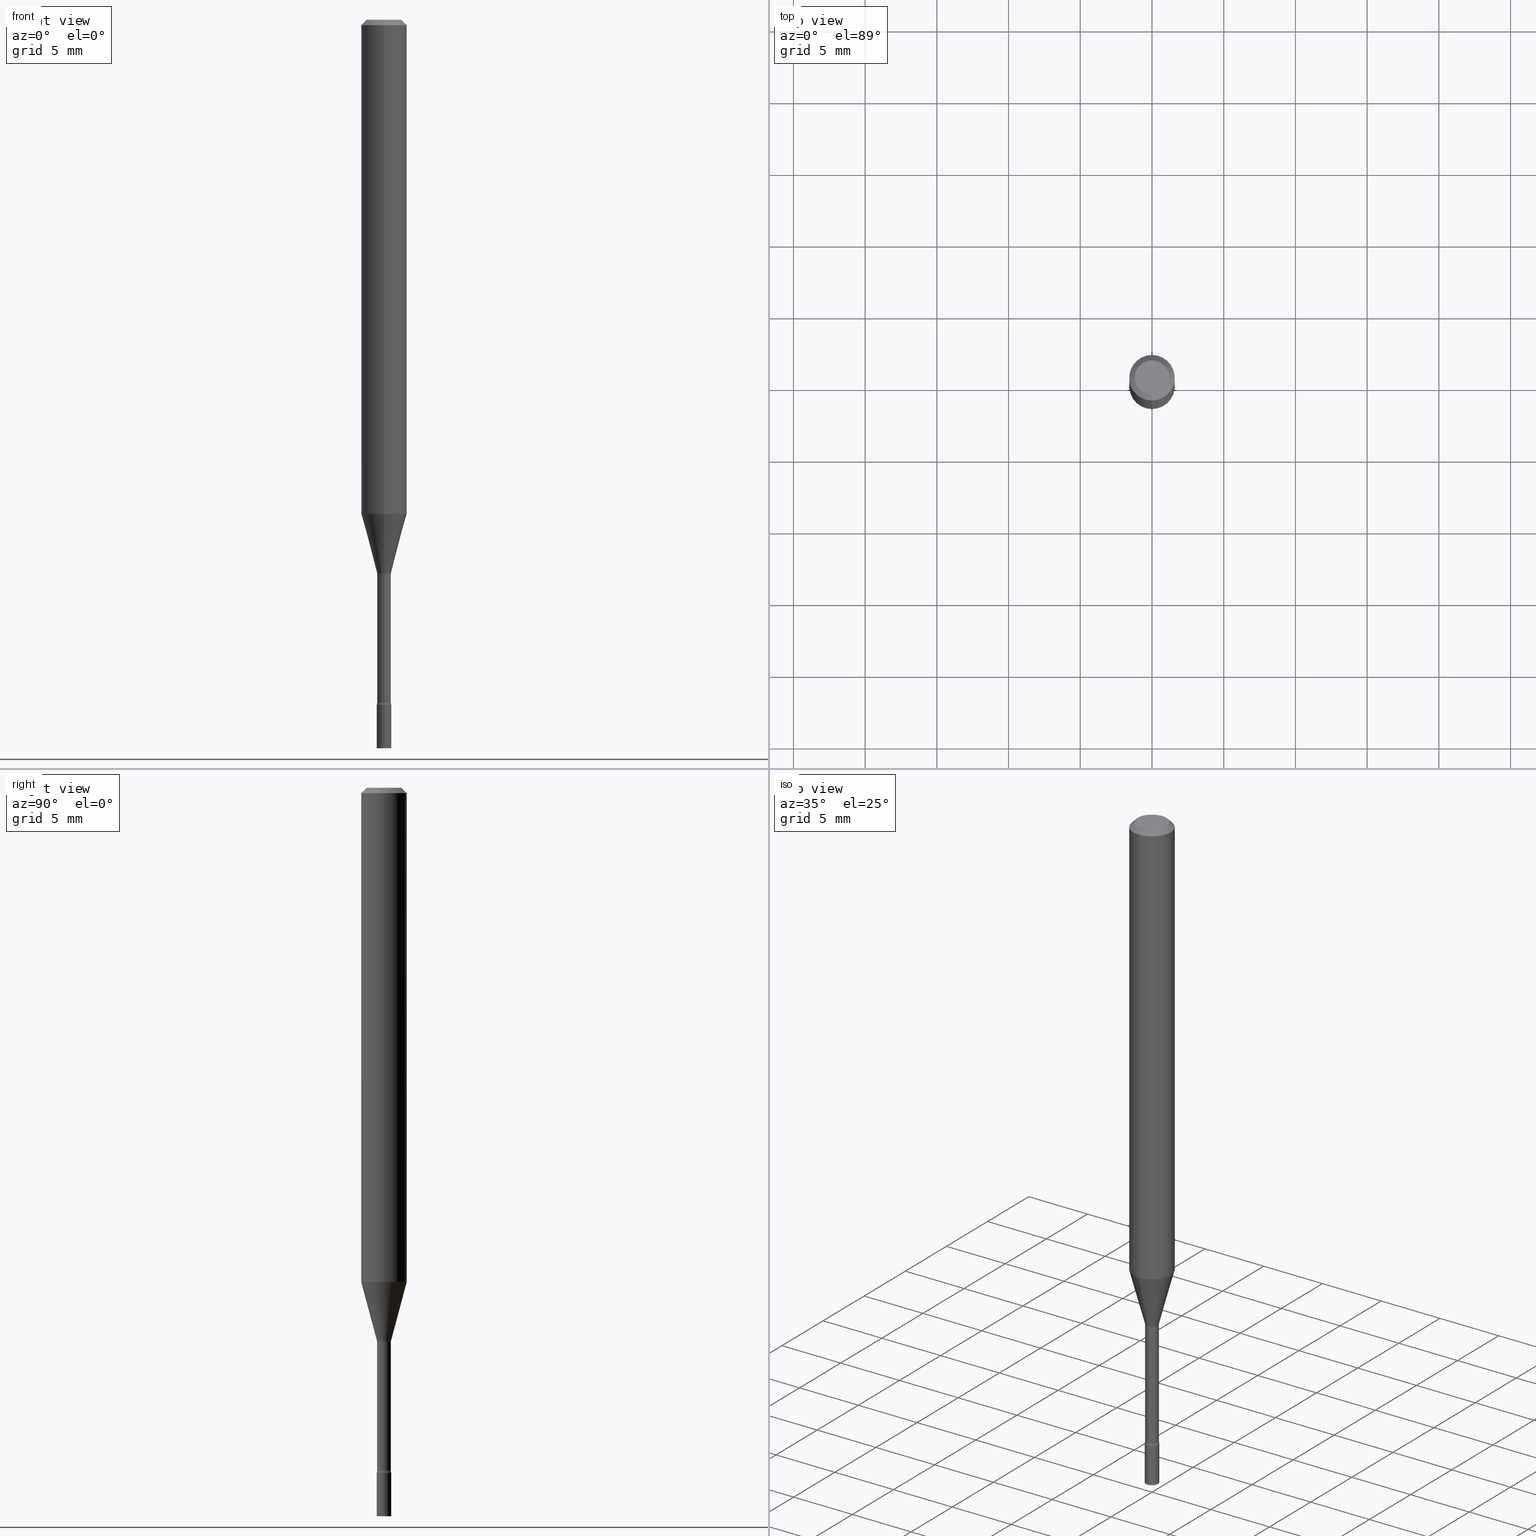
[diagram: canonical four-view strip — front | top / right | iso, engineering-drawing reading convention]
A machine part, canonical four-view strip (front | top / right | iso — engineering-drawing reading convention). The complete STEP part file that produces these views, byte-faithful:
ISO-10303-21;
HEADER;
FILE_DESCRIPTION (( 'STEP AP203' ),
    '1' );
FILE_NAME ('09366.STEP',
    '2024-03-08T23:23:35',
    ( '' ),
    ( '' ),
    'SwSTEP 2.0',
    'SolidWorks 2023',
    '' );
FILE_SCHEMA (( 'CONFIG_CONTROL_DESIGN' ));
ENDSEC;

DATA;
#1 = EDGE_CURVE ( 'NONE', #261, #129, #315, .T. ) ;
#2 = CIRCLE ( 'NONE', #517, 0.06250000000000000000 ) ;
#3 = CIRCLE ( 'NONE', #325, 0.01880000000000012564 ) ;
#4 = FACE_OUTER_BOUND ( 'NONE', #305, .T. ) ;
#5 = ORIENTED_EDGE ( 'NONE', *, *, #356, .F. ) ;
#6 = CYLINDRICAL_SURFACE ( 'NONE', #468, 0.01880000000000006319 ) ;
#7 = EDGE_CURVE ( 'NONE', #196, #336, #495, .T. ) ;
#8 = ORIENTED_EDGE ( 'NONE', *, *, #135, .F. ) ;
#9 = DIRECTION ( 'NONE',  ( -2.445505106030929007E-29, 3.491429355397911828E-15, 1.000000000000000000 ) ) ;
#10 = FACE_OUTER_BOUND ( 'NONE', #498, .T. ) ;
#11 = ORIENTED_EDGE ( 'NONE', *, *, #288, .T. ) ;
#12 = COORDINATED_UNIVERSAL_TIME_OFFSET ( 5, 0, .BEHIND. ) ;
#13 = AXIS2_PLACEMENT_3D ( 'NONE', #442, #480, #448 ) ;
#14 = LINE ( 'NONE', #163, #90 ) ;
#15 = DIRECTION ( 'NONE',  ( -6.982962677686262766E-15, -1.000000000000000000, 0.000000000000000000 ) ) ;
#16 = DATE_AND_TIME ( #84, #103 ) ;
#17 = DIRECTION ( 'NONE',  ( -6.982962677686271444E-15, -1.000000000000000000, 0.000000000000000000 ) ) ;
#18 = EDGE_CURVE ( 'NONE', #336, #132, #486, .T. ) ;
#19 = DIRECTION ( 'NONE',  ( -6.982962677686265922E-15, -1.000000000000000000, 0.000000000000000000 ) ) ;
#20 = PERSON_AND_ORGANIZATION ( #47, #381 ) ;
#21 = CC_DESIGN_SECURITY_CLASSIFICATION ( #170, ( #39 ) ) ;
#22 = DIRECTION ( 'NONE',  ( -2.445468806185136597E-29, 3.491481338843145583E-15, 1.000000000000000000 ) ) ;
#23 = VECTOR ( 'NONE', #168, 39.37007874015748143 ) ;
#24 = VECTOR ( 'NONE', #107, 39.37007874015748143 ) ;
#25 = ORIENTED_EDGE ( 'NONE', *, *, #276, .F. ) ;
#26 = DIRECTION ( 'NONE',  ( -2.445505106030929007E-29, 3.491429355397911828E-15, 1.000000000000000000 ) ) ;
#27 = ORIENTED_EDGE ( 'NONE', *, *, #321, .T. ) ;
#28 = CARTESIAN_POINT ( 'NONE',  ( 4.597549599338146578E-29, -6.563887188148074048E-15, -1.879999999999999893 ) ) ;
#29 = EDGE_LOOP ( 'NONE', ( #118, #416, #331, #8 ) ) ;
#30 = DIRECTION ( 'NONE',  ( -6.982962677686265922E-15, -1.000000000000000000, 3.491429355397911828E-15 ) ) ;
#31 = AXIS2_PLACEMENT_3D ( 'NONE', #360, #450, #46 ) ;
#32 = CARTESIAN_POINT ( 'NONE',  ( 1.372137078140354813E-16, 0.01931111260565867432, -1.518092501787273063 ) ) ;
#33 = ORIENTED_EDGE ( 'NONE', *, *, #98, .F. ) ;
#34 = CARTESIAN_POINT ( 'NONE',  ( 0.000000000000000000, 0.000000000000000000, 0.000000000000000000 ) ) ;
#35 = AXIS2_PLACEMENT_3D ( 'NONE', #365, #520, #306 ) ;
#36 = CIRCLE ( 'NONE', #120, 0.01880000000000000074 ) ;
#37 = EDGE_CURVE ( 'NONE', #178, #371, #188, .T. ) ;
#38 = EDGE_LOOP ( 'NONE', ( #100, #218, #443, #109 ) ) ;
#39 = PRODUCT_DEFINITION_FORMATION_WITH_SPECIFIED_SOURCE ( 'ANY', '', #318, .NOT_KNOWN. ) ;
#40 = AXIS2_PLACEMENT_3D ( 'NONE', #42, #91, #487 ) ;
#41 = AXIS2_PLACEMENT_3D ( 'NONE', #222, #389, #30 ) ;
#42 = CARTESIAN_POINT ( 'NONE',  ( 4.597481355628056331E-29, -6.563984917025112954E-15, -1.879999999999999893 ) ) ;
#43 = DIRECTION ( 'NONE',  ( 1.000000000000000000, -6.982962677686284065E-15, 0.000000000000000000 ) ) ;
#44 = CARTESIAN_POINT ( 'NONE',  ( 1.396592535537742485E-16, 0.01999999999999301642, -2.000000000000000000 ) ) ;
#45 = EDGE_LOOP ( 'NONE', ( #227, #505, #101, #297 ) ) ;
#46 = DIRECTION ( 'NONE',  ( -6.982962677686265922E-15, -1.000000000000000000, 3.491429355397911828E-15 ) ) ;
#47 = PERSON ( 'UNSPECIFIED', 'UNSPECIFIED', 'UNSPECIFIED', ('UNSPECIFIED'), ('UNSPECIFIED'), ('UNSPECIFIED') ) ;
#48 = VERTEX_POINT ( 'NONE', #102 ) ;
#49 = AXIS2_PLACEMENT_3D ( 'NONE', #481, #324, #239 ) ;
#50 = FACE_OUTER_BOUND ( 'NONE', #391, .T. ) ;
#51 = APPROVAL_ROLE ( '' ) ;
#52 = CC_DESIGN_PERSON_AND_ORGANIZATION_ASSIGNMENT ( #112, #275, ( #88 ) ) ;
#53 = DIRECTION ( 'NONE',  ( -6.982962677686266711E-15, -1.000000000000000000, 3.491429355397911828E-15 ) ) ;
#54 = FACE_OUTER_BOUND ( 'NONE', #453, .T. ) ;
#55 = ORIENTED_EDGE ( 'NONE', *, *, #518, .F. ) ;
#56 = PERSON_AND_ORGANIZATION ( #47, #381 ) ;
#57 = DIRECTION ( 'NONE',  ( -2.445468806185136597E-29, 3.491481338843145583E-15, 1.000000000000000000 ) ) ;
#58 = VERTEX_POINT ( 'NONE', #461 ) ;
#59 = LOCAL_TIME ( 18, 23, 35.00000000000000000, #249 ) ;
#60 = CARTESIAN_POINT ( 'NONE',  ( 0.000000000000000000, 0.000000000000000000, 0.000000000000000000 ) ) ;
#61 = CIRCLE ( 'NONE', #400, 0.02000000000000000042 ) ;
#62 = EDGE_CURVE ( 'NONE', #132, #336, #36, .T. ) ;
#63 = VERTEX_POINT ( 'NONE', #95 ) ;
#64 = EDGE_LOOP ( 'NONE', ( #500, #420, #217, #301 ) ) ;
#65 = FACE_OUTER_BOUND ( 'NONE', #177, .T. ) ;
#66 = ORIENTED_EDGE ( 'NONE', *, *, #202, .F. ) ;
#67 = CARTESIAN_POINT ( 'NONE',  ( 4.890937612370273194E-29, -6.982962677686291165E-15, -2.000000000000000000 ) ) ;
#68 = CIRCLE ( 'NONE', #285, 0.04749999999999999362 ) ;
#69 = VERTEX_POINT ( 'NONE', #157 ) ;
#70 = EDGE_LOOP ( 'NONE', ( #220, #308, #33, #424 ) ) ;
#71 = EDGE_CURVE ( 'NONE', #261, #132, #405, .T. ) ;
#72 = CALENDAR_DATE ( 2024, 8, 3 ) ;
#73 = MECHANICAL_CONTEXT ( 'NONE', #80, 'mechanical' ) ;
#74 = CONICAL_SURFACE ( 'NONE', #349, 0.01931111260566397564, 0.2617993877991498519 ) ;
#75 = AXIS2_PLACEMENT_3D ( 'NONE', #82, #361, #282 ) ;
#76 = APPROVAL_ROLE ( '' ) ;
#77 = LINE ( 'NONE', #289, #162 ) ;
#78 = AXIS2_PLACEMENT_3D ( 'NONE', #180, #94, #508 ) ;
#79 = CIRCLE ( 'NONE', #128, 0.02000000000000000042 ) ;
#80 = APPLICATION_CONTEXT ( 'configuration controlled 3d designs of mechanical parts and assemblies' ) ;
#81 = DIRECTION ( 'NONE',  ( -2.445505106030929007E-29, 3.491429355397911828E-15, 1.000000000000000000 ) ) ;
#82 = CARTESIAN_POINT ( 'NONE',  ( 3.318328816500207718E-29, -4.737553240931613222E-15, -1.356909379709240193 ) ) ;
#83 = DIRECTION ( 'NONE',  ( -6.982962677686265922E-15, -1.000000000000000000, 3.491429355397911828E-15 ) ) ;
#84 = CALENDAR_DATE ( 2024, 8, 3 ) ;
#85 = CARTESIAN_POINT ( 'NONE',  ( 7.071515528401265634E-46, -1.009594984779397926E-31, -2.891638014151760523E-17 ) ) ;
#86 = CYLINDRICAL_SURFACE ( 'NONE', #393, 0.06250000000000000000 ) ;
#87 = AXIS2_PLACEMENT_3D ( 'NONE', #67, #141, #43 ) ;
#88 = PRODUCT_DEFINITION ( 'UNKNOWN', '', #39, #482 ) ;
#89 = VERTEX_POINT ( 'NONE', #441 ) ;
#90 = VECTOR ( 'NONE', #150, 39.37007874015748143 ) ;
#91 = DIRECTION ( 'NONE',  ( -2.438088387897960049E-29, 3.491481338843145188E-15, 1.000000000000000000 ) ) ;
#92 = DIRECTION ( 'NONE',  ( -2.445505106030929007E-29, 3.491429355397911828E-15, 1.000000000000000000 ) ) ;
#93 = ORIENTED_EDGE ( 'NONE', *, *, #343, .F. ) ;
#94 = DIRECTION ( 'NONE',  ( -2.445505106030929007E-29, 3.491429355397911828E-15, 1.000000000000000000 ) ) ;
#95 = CARTESIAN_POINT ( 'NONE',  ( -1.396592535536790429E-16, -0.02000000000000652298, -1.879999999999999893 ) ) ;
#96 = ORIENTED_EDGE ( 'NONE', *, *, #71, .T. ) ;
#97 = PERSON_AND_ORGANIZATION ( #47, #381 ) ;
#98 = EDGE_CURVE ( 'NONE', #58, #385, #173, .T. ) ;
#99 = DIRECTION ( 'NONE',  ( 6.982962677686265922E-15, 1.000000000000000000, -3.491429355397911828E-15 ) ) ;
#100 = ORIENTED_EDGE ( 'NONE', *, *, #274, .F. ) ;
#101 = ORIENTED_EDGE ( 'NONE', *, *, #280, .T. ) ;
#102 = CARTESIAN_POINT ( 'NONE',  ( -4.364351673553912750E-16, -0.06250000000000005551, -0.01499999999999981209 ) ) ;
#103 = LOCAL_TIME ( 18, 23, 35.00000000000000000, #12 ) ;
#104 = DIRECTION ( 'NONE',  ( -6.982962677686265922E-15, -1.000000000000000000, 0.000000000000000000 ) ) ;
#105 = EDGE_LOOP ( 'NONE', ( #430, #255, #510, #367 ) ) ;
#106 = LINE ( 'NONE', #466, #24 ) ;
#107 = DIRECTION ( 'NONE',  ( -4.851104656540964275E-15, -0.7071067811865500152, -0.7071067811865450192 ) ) ;
#108 = CC_DESIGN_DATE_AND_TIME_ASSIGNMENT ( #164, #161, ( #88 ) ) ;
#109 = ORIENTED_EDGE ( 'NONE', *, *, #398, .F. ) ;
#110 = AXIS2_PLACEMENT_3D ( 'NONE', #44, #116, #459 ) ;
#111 = CIRCLE ( 'NONE', #194, 0.06250000000000000000 ) ;
#112 = PERSON_AND_ORGANIZATION ( #47, #381 ) ;
#113 = EDGE_CURVE ( 'NONE', #129, #58, #290, .T. ) ;
#114 = PERSON_AND_ORGANIZATION ( #47, #381 ) ;
#115 = EDGE_CURVE ( 'NONE', #223, #171, #68, .T. ) ;
#116 = DIRECTION ( 'NONE',  ( 2.438088387897960049E-29, -3.491481338843145188E-15, -1.000000000000000000 ) ) ;
#117 = CARTESIAN_POINT ( 'NONE',  ( 1.396592535537712903E-16, 0.01999999999999343622, -1.879999999999999893 ) ) ;
#118 = ORIENTED_EDGE ( 'NONE', *, *, #321, .F. ) ;
#119 = DATE_AND_TIME ( #272, #307 ) ;
#120 = AXIS2_PLACEMENT_3D ( 'NONE', #348, #92, #19 ) ;
#121 = DIRECTION ( 'NONE',  ( -6.982962677686265133E-15, -1.000000000000000000, 3.491429355397911828E-15 ) ) ;
#122 = APPROVAL_STATUS ( 'not_yet_approved' ) ;
#123 = DIRECTION ( 'NONE',  ( -2.445505106030928727E-29, 3.491429355397911828E-15, 1.000000000000000000 ) ) ;
#124 = EDGE_CURVE ( 'NONE', #63, #69, #61, .T. ) ;
#125 = ADVANCED_BREP_SHAPE_REPRESENTATION ( '09366', ( #240, #245, #238 ), #269 ) ;
#126 = DIRECTION ( 'NONE',  ( -6.982962677686265922E-15, -1.000000000000000000, 0.000000000000000000 ) ) ;
#127 = PLANE ( 'NONE',  #110 ) ;
#128 = AXIS2_PLACEMENT_3D ( 'NONE', #422, #22, #181 ) ;
#129 = VERTEX_POINT ( 'NONE', #159 ) ;
#130 = AXIS2_PLACEMENT_3D ( 'NONE', #502, #298, #314 ) ;
#131 = DIRECTION ( 'NONE',  ( 1.000000000000000000, -7.105427357601001070E-15, 4.926314871928484393E-29 ) ) ;
#132 = VERTEX_POINT ( 'NONE', #452 ) ;
#133 = ORIENTED_EDGE ( 'NONE', *, *, #37, .T. ) ;
#134 = DIRECTION ( 'NONE',  ( -6.982962677686265922E-15, -1.000000000000000000, 4.370956789862821150E-15 ) ) ;
#135 = EDGE_CURVE ( 'NONE', #223, #156, #211, .T. ) ;
#136 = DIRECTION ( 'NONE',  ( 2.445505106030929007E-29, -3.491429355397911828E-15, -1.000000000000000000 ) ) ;
#137 = ORIENTED_EDGE ( 'NONE', *, *, #225, .F. ) ;
#138 = CONICAL_SURFACE ( 'NONE', #390, 0.06250000000000000000, 0.7853981633974483900 ) ;
#139 = DIRECTION ( 'NONE',  ( -2.445468806185136597E-29, 3.491481338843145583E-15, 1.000000000000000000 ) ) ;
#140 = AXIS2_PLACEMENT_3D ( 'NONE', #372, #437, #126 ) ;
#141 = DIRECTION ( 'NONE',  ( -2.445468806185136597E-29, 3.491481338843145583E-15, 1.000000000000000000 ) ) ;
#142 = APPROVAL ( #233, 'UNSPECIFIED' ) ;
#143 = EDGE_LOOP ( 'NONE', ( #264, #504, #219, #345 ) ) ;
#144 = APPROVAL_DATE_TIME ( #119, #142 ) ;
#145 = AXIS2_PLACEMENT_3D ( 'NONE', #28, #339, #104 ) ;
#146 = ADVANCED_FACE ( 'NONE', ( #506 ), #262, .T. ) ;
#147 = CYLINDRICAL_SURFACE ( 'NONE', #283, 0.06250000000000000000 ) ;
#148 = TOROIDAL_SURFACE ( 'NONE', #35, 0.03380000000000004529, 0.01499999999999992138 ) ;
#149 = CIRCLE ( 'NONE', #279, 0.01880000000000012564 ) ;
#150 = DIRECTION ( 'NONE',  ( -2.445505106030928727E-29, 3.491429355397911828E-15, 1.000000000000000000 ) ) ;
#151 = ADVANCED_FACE ( 'NONE', ( #54 ), #251, .T. ) ;
#152 = CARTESIAN_POINT ( 'NONE',  ( -0.02000000000000000042, -6.631365250203681896E-15, -2.000000000000000000 ) ) ;
#153 = APPLICATION_CONTEXT ( 'configuration controlled 3d designs of mechanical parts and assemblies' ) ;
#154 = CARTESIAN_POINT ( 'NONE',  ( 4.597549599338146578E-29, -6.563887188148074048E-15, -1.879999999999999893 ) ) ;
#155 = DIRECTION ( 'NONE',  ( 0.000000000000000000, 0.000000000000000000, 1.000000000000000000 ) ) ;
#156 = VERTEX_POINT ( 'NONE', #284 ) ;
#157 = CARTESIAN_POINT ( 'NONE',  ( 1.421085471520656955E-16, 0.01999999999999339112, -1.879999999999999893 ) ) ;
#158 = FACE_OUTER_BOUND ( 'NONE', #105, .T. ) ;
#159 = CARTESIAN_POINT ( 'NONE',  ( -1.348487785899111910E-16, -0.01931111260566927695, -1.518092501787273063 ) ) ;
#160 = ORIENTED_EDGE ( 'NONE', *, *, #115, .F. ) ;
#161 = DATE_TIME_ROLE ( 'creation_date' ) ;
#162 = VECTOR ( 'NONE', #123, 39.37007874015748143 ) ;
#163 = CARTESIAN_POINT ( 'NONE',  ( 4.440892098500625669E-16, 0.06250000000000000000, -2.182143347123694893E-16 ) ) ;
#164 = DATE_AND_TIME ( #72, #224 ) ;
#165 = CC_DESIGN_PERSON_AND_ORGANIZATION_ASSIGNMENT ( #368, #417, ( #170 ) ) ;
#166 = CARTESIAN_POINT ( 'NONE',  ( -3.773273898774340269E-16, -0.04749999999999999362, 1.369265142398832138E-16 ) ) ;
#167 = SHAPE_DEFINITION_REPRESENTATION ( #186, #125 ) ;
#168 = DIRECTION ( 'NONE',  ( -1.807323732225327378E-15, -0.2588190451025177974, 0.9659258262890690894 ) ) ;
#169 = FACE_OUTER_BOUND ( 'NONE', #493, .T. ) ;
#170 = SECURITY_CLASSIFICATION ( '', '', #172 ) ;
#171 = VERTEX_POINT ( 'NONE', #166 ) ;
#172 = SECURITY_CLASSIFICATION_LEVEL ( 'unclassified' ) ;
#173 = CIRCLE ( 'NONE', #75, 0.06250000000000000000 ) ;
#174 = CC_DESIGN_APPROVAL ( #444, ( #39 ) ) ;
#175 = DIRECTION ( 'NONE',  ( -2.445505106030929007E-29, 3.491429355397911828E-15, 1.000000000000000000 ) ) ;
#176 = EDGE_CURVE ( 'NONE', #58, #48, #77, .T. ) ;
#177 = EDGE_LOOP ( 'NONE', ( #396, #96, #425, #137 ) ) ;
#178 = VERTEX_POINT ( 'NONE', #152 ) ;
#179 = EDGE_CURVE ( 'NONE', #196, #192, #3, .T. ) ;
#180 = CARTESIAN_POINT ( 'NONE',  ( 4.583104993811145531E-29, -6.543459282481239077E-15, -1.874121224617320669 ) ) ;
#181 = DIRECTION ( 'NONE',  ( 1.000000000000000000, -6.982962677686284065E-15, 0.000000000000000000 ) ) ;
#182 = ORIENTED_EDGE ( 'NONE', *, *, #236, .F. ) ;
#183 = CLOSED_SHELL ( 'NONE', ( #406, #195, #456, #184, #191, #146, #313, #507, #346, #358, #221, #322, #435, #248 ) ) ;
#184 = ADVANCED_FACE ( 'NONE', ( #491 ), #439, .T. ) ;
#185 = DIRECTION ( 'NONE',  ( 6.982962677686265922E-15, 1.000000000000000000, -3.483106191921935554E-15 ) ) ;
#186 = PRODUCT_DEFINITION_SHAPE ( 'NONE', 'NONE',  #88 ) ;
#187 = CARTESIAN_POINT ( 'NONE',  ( 0.000000000000000000, 0.000000000000000000, 0.000000000000000000 ) ) ;
#188 = CIRCLE ( 'NONE', #235, 0.02000000000000000042 ) ;
#189 = CARTESIAN_POINT ( 'NONE',  ( 4.364351673553919652E-16, 0.06249999999999995143, -0.01500000000000024751 ) ) ;
#190 = FACE_OUTER_BOUND ( 'NONE', #45, .T. ) ;
#191 = ADVANCED_FACE ( 'NONE', ( #4 ), #86, .T. ) ;
#192 = VERTEX_POINT ( 'NONE', #412 ) ;
#193 = DIRECTION ( 'NONE',  ( 1.000000000000000000, 0.000000000000000000, 0.000000000000000000 ) ) ;
#194 = AXIS2_PLACEMENT_3D ( 'NONE', #419, #216, #134 ) ;
#195 = ADVANCED_FACE ( 'NONE', ( #158 ), #6, .T. ) ;
#196 = VERTEX_POINT ( 'NONE', #203 ) ;
#197 = EDGE_CURVE ( 'NONE', #192, #196, #149, .T. ) ;
#198 = CARTESIAN_POINT ( 'NONE',  ( 4.583173024122595615E-29, -6.543361859203197978E-15, -1.874121224617320669 ) ) ;
#199 = CARTESIAN_POINT ( 'NONE',  ( -2.360241385057585877E-16, -0.03380000000000531191, -1.521974787463810985 ) ) ;
#200 = LENGTH_MEASURE_WITH_UNIT ( LENGTH_MEASURE( 0.02539999999999999897 ), #401 );
#201 = LINE ( 'NONE', #291, #253 ) ;
#202 = EDGE_CURVE ( 'NONE', #48, #156, #273, .T. ) ;
#203 = CARTESIAN_POINT ( 'NONE',  ( -1.312796983404568611E-16, -0.01880000000000666902, -1.874121224617320669 ) ) ;
#204 = AXIS2_PLACEMENT_3D ( 'NONE', #357, #433, #395 ) ;
#205 = DIRECTION ( 'NONE',  ( -2.445505106030928727E-29, 3.491429355397911828E-15, 1.000000000000000000 ) ) ;
#206 = AXIS2_PLACEMENT_3D ( 'NONE', #447, #414, #374 ) ;
#207 = CARTESIAN_POINT ( 'NONE',  ( 0.000000000000000000, 0.000000000000000000, 0.000000000000000000 ) ) ;
#208 = ORIENTED_EDGE ( 'NONE', *, *, #274, .T. ) ;
#209 = DATE_TIME_ROLE ( 'classification_date' ) ;
#210 = DIRECTION ( 'NONE',  ( -1.000000000000000000, 6.982962677686265922E-15, -4.883557194083112340E-29 ) ) ;
#211 = LINE ( 'NONE', #189, #362 ) ;
#212 = ORIENTED_EDGE ( 'NONE', *, *, #398, .T. ) ;
#213 = CARTESIAN_POINT ( 'NONE',  ( 3.712502964548043038E-29, -5.300312724949541931E-15, -1.518092501787273063 ) ) ;
#214 = AXIS2_PLACEMENT_3D ( 'NONE', #299, #511, #99 ) ;
#215 = ORIENTED_EDGE ( 'NONE', *, *, #343, .T. ) ;
#216 = DIRECTION ( 'NONE',  ( -2.445505106030929007E-29, 3.491429355397911828E-15, 1.000000000000000000 ) ) ;
#217 = ORIENTED_EDGE ( 'NONE', *, *, #113, .T. ) ;
#218 = ORIENTED_EDGE ( 'NONE', *, *, #394, .T. ) ;
#219 = ORIENTED_EDGE ( 'NONE', *, *, #316, .T. ) ;
#220 = ORIENTED_EDGE ( 'NONE', *, *, #356, .T. ) ;
#221 = ADVANCED_FACE ( 'NONE', ( #50 ), #366, .F. ) ;
#222 = CARTESIAN_POINT ( 'NONE',  ( 3.721941866543002798E-29, -5.313946568619659199E-15, -1.521974787463810985 ) ) ;
#223 = VERTEX_POINT ( 'NONE', #319 ) ;
#224 = LOCAL_TIME ( 18, 23, 35.00000000000000000, #434 ) ;
#225 = EDGE_CURVE ( 'NONE', #129, #336, #350, .T. ) ;
#226 = LINE ( 'NONE', #32, #509 ) ;
#227 = ORIENTED_EDGE ( 'NONE', *, *, #197, .F. ) ;
#228 = CARTESIAN_POINT ( 'NONE',  ( 3.712502964548043038E-29, -5.300312724949541931E-15, -1.518092501787273063 ) ) ;
#229 = DIRECTION ( 'NONE',  ( 1.839019923739597160E-15, 0.2588190451025245142, 0.9659258262890670910 ) ) ;
#230 = CARTESIAN_POINT ( 'NONE',  ( -0.02000000000000000042, -6.631365250203681896E-15, -1.879999999999999893 ) ) ;
#231 = ADVANCED_FACE ( 'NONE', ( #483 ), #127, .T. ) ;
#232 = CIRCLE ( 'NONE', #323, 0.04749999999999999362 ) ;
#233 = APPROVAL_STATUS ( 'not_yet_approved' ) ;
#234 = CARTESIAN_POINT ( 'NONE',  ( 4.890937612370273194E-29, -6.982962677686291165E-15, -2.000000000000000000 ) ) ;
#235 = AXIS2_PLACEMENT_3D ( 'NONE', #234, #485, #392 ) ;
#236 = EDGE_CURVE ( 'NONE', #178, #465, #201, .T. ) ;
#237 = ORIENTED_EDGE ( 'NONE', *, *, #197, .T. ) ;
#238 = AXIS2_PLACEMENT_3D ( 'NONE', #34, #155, #193 ) ;
#239 = DIRECTION ( 'NONE',  ( -6.982962677686265922E-15, -1.000000000000000000, 3.483106191921935554E-15 ) ) ;
#240 = MANIFOLD_SOLID_BREP ( 'Body-Move/Copy2[1]', #475 ) ;
#241 = CIRCLE ( 'NONE', #145, 0.02000000000000000042 ) ;
#242 = CIRCLE ( 'NONE', #369, 0.01499999999999992485 ) ;
#243 = DIRECTION ( 'NONE',  ( -6.982962677686266711E-15, -1.000000000000000000, 0.000000000000000000 ) ) ;
#244 = ADVANCED_FACE ( 'NONE', ( #10 ), #328, .T. ) ;
#245 = MANIFOLD_SOLID_BREP ( 'Body-Move/Copy2[2]', #183 ) ;
#246 = APPROVAL_STATUS ( 'not_yet_approved' ) ;
#247 = DIRECTION ( 'NONE',  ( -2.445468806185136877E-29, 3.491481338843145188E-15, 1.000000000000000000 ) ) ;
#248 = ADVANCED_FACE ( 'NONE', ( #254 ), #479, .F. ) ;
#249 = COORDINATED_UNIVERSAL_TIME_OFFSET ( 5, 0, .BEHIND. ) ;
#250 = DIRECTION ( 'NONE',  ( -2.445505106030929007E-29, 3.491429355397911828E-15, 1.000000000000000000 ) ) ;
#251 = CYLINDRICAL_SURFACE ( 'NONE', #497, 0.02000000000000000042 ) ;
#252 = DATE_AND_TIME ( #501, #59 ) ;
#253 = VECTOR ( 'NONE', #247, 39.37007874015748143 ) ;
#254 = FACE_OUTER_BOUND ( 'NONE', #258, .T. ) ;
#255 = ORIENTED_EDGE ( 'NONE', *, *, #518, .T. ) ;
#256 = CC_DESIGN_PERSON_AND_ORGANIZATION_ASSIGNMENT ( #97, #449, ( #39 ) ) ;
#257 = CYLINDRICAL_SURFACE ( 'NONE', #446, 0.02000000000000000042 ) ;
#258 = EDGE_LOOP ( 'NONE', ( #463, #5, #382, #268 ) ) ;
#259 = DIRECTION ( 'NONE',  ( -2.445505106030929007E-29, 3.491429355397911828E-15, 1.000000000000000000 ) ) ;
#260 = TOROIDAL_SURFACE ( 'NONE', #41, 0.03380000000000000365, 0.01500000000000002720 ) ;
#261 = VERTEX_POINT ( 'NONE', #287 ) ;
#262 = CONICAL_SURFACE ( 'NONE', #130, 0.01931111260566397564, 0.2617993877991498519 ) ;
#263 = CARTESIAN_POINT ( 'NONE',  ( 7.071515528401265634E-46, -1.009594984779397926E-31, -2.891638014151760523E-17 ) ) ;
#264 = ORIENTED_EDGE ( 'NONE', *, *, #330, .F. ) ;
#265 = CARTESIAN_POINT ( 'NONE',  ( 4.440892098500955511E-16, 0.06249999999999524686, -1.356909379709240415 ) ) ;
#266 = APPROVAL ( #122, 'UNSPECIFIED' ) ;
#267 = CARTESIAN_POINT ( 'NONE',  ( 3.712502964548043038E-29, -5.300312724949541931E-15, -1.518092501787273063 ) ) ;
#268 = ORIENTED_EDGE ( 'NONE', *, *, #18, .T. ) ;
#269 =( GEOMETRIC_REPRESENTATION_CONTEXT ( 3 ) GLOBAL_UNCERTAINTY_ASSIGNED_CONTEXT ( ( #515 ) ) GLOBAL_UNIT_ASSIGNED_CONTEXT ( ( #512, #478, #477 ) ) REPRESENTATION_CONTEXT ( 'NONE', 'WORKASPACE' ) );
#270 = ORIENTED_EDGE ( 'NONE', *, *, #135, .T. ) ;
#271 = VECTOR ( 'NONE', #205, 39.37007874015748143 ) ;
#272 = CALENDAR_DATE ( 2024, 8, 3 ) ;
#273 = CIRCLE ( 'NONE', #49, 0.06250000000000000000 ) ;
#274 = EDGE_CURVE ( 'NONE', #385, #156, #14, .T. ) ;
#275 = PERSON_AND_ORGANIZATION_ROLE ( 'creator' ) ;
#276 = EDGE_CURVE ( 'NONE', #371, #89, #490, .T. ) ;
#277 = DIRECTION ( 'NONE',  ( -2.445505106030929007E-29, 3.491429355397911828E-15, 1.000000000000000000 ) ) ;
#278 = PERSON_AND_ORGANIZATION_ROLE ( 'design_owner' ) ;
#279 = AXIS2_PLACEMENT_3D ( 'NONE', #198, #81, #243 ) ;
#280 = EDGE_CURVE ( 'NONE', #69, #63, #241, .T. ) ;
#281 = DIRECTION ( 'NONE',  ( -2.445505106030929007E-29, 3.491429355397911828E-15, 1.000000000000000000 ) ) ;
#282 = DIRECTION ( 'NONE',  ( -6.982962677686265922E-15, -1.000000000000000000, 4.370956789862821150E-15 ) ) ;
#283 = AXIS2_PLACEMENT_3D ( 'NONE', #519, #9, #309 ) ;
#284 = CARTESIAN_POINT ( 'NONE',  ( 4.440892098500960442E-16, 0.06249999999999995837, -0.01500000000000024751 ) ) ;
#285 = AXIS2_PLACEMENT_3D ( 'NONE', #85, #421, #383 ) ;
#286 = ORIENTED_EDGE ( 'NONE', *, *, #62, .F. ) ;
#287 = CARTESIAN_POINT ( 'NONE',  ( 2.906514588320657258E-16, 0.01931111260565867432, -1.518092501787273063 ) ) ;
#288 = EDGE_CURVE ( 'NONE', #89, #465, #79, .T. ) ;
#289 = CARTESIAN_POINT ( 'NONE',  ( -4.364351673553916201E-16, -0.06250000000000000000, 2.182143347123694893E-16 ) ) ;
#290 = LINE ( 'NONE', #458, #23 ) ;
#291 = CARTESIAN_POINT ( 'NONE',  ( -0.02000000000000000042, 1.421085471520200401E-16, -9.837870180509812545E-31 ) ) ;
#292 = CIRCLE ( 'NONE', #87, 0.02000000000000000042 ) ;
#293 = ORIENTED_EDGE ( 'NONE', *, *, #288, .F. ) ;
#294 = AXIS2_PLACEMENT_3D ( 'NONE', #228, #354, #514 ) ;
#295 = CARTESIAN_POINT ( 'NONE',  ( 4.597481355628056331E-29, -6.563984917025112954E-15, -1.879999999999999893 ) ) ;
#296 = CARTESIAN_POINT ( 'NONE',  ( 3.668257659046400833E-31, -5.237144033096878737E-17, -0.01500000000000003067 ) ) ;
#297 = ORIENTED_EDGE ( 'NONE', *, *, #316, .F. ) ;
#298 = DIRECTION ( 'NONE',  ( -2.445505106030929007E-29, 3.491429355397911828E-15, 1.000000000000000000 ) ) ;
#299 = CARTESIAN_POINT ( 'NONE',  ( 3.316907271900976096E-16, 0.04749999999999999362, -1.803010844521596124E-16 ) ) ;
#300 = CIRCLE ( 'NONE', #404, 0.01499999999999991618 ) ;
#301 = ORIENTED_EDGE ( 'NONE', *, *, #394, .F. ) ;
#302 = DIRECTION ( 'NONE',  ( -6.982962677686265922E-15, -1.000000000000000000, 0.000000000000000000 ) ) ;
#303 = ORIENTED_EDGE ( 'NONE', *, *, #37, .F. ) ;
#304 = FACE_OUTER_BOUND ( 'NONE', #378, .T. ) ;
#305 = EDGE_LOOP ( 'NONE', ( #344, #208, #66, #472 ) ) ;
#306 = DIRECTION ( 'NONE',  ( -6.982962677686265922E-15, -1.000000000000000000, 3.491429355397911828E-15 ) ) ;
#307 = LOCAL_TIME ( 18, 23, 35.00000000000000000, #516 ) ;
#308 = ORIENTED_EDGE ( 'NONE', *, *, #451, .T. ) ;
#309 = DIRECTION ( 'NONE',  ( -6.982962677686265922E-15, -1.000000000000000000, 3.491429355397911828E-15 ) ) ;
#310 = CC_DESIGN_APPROVAL ( #142, ( #88 ) ) ;
#311 = DIRECTION ( 'NONE',  ( -2.445505106030928727E-29, 3.491429355397911828E-15, 1.000000000000000000 ) ) ;
#312 = CARTESIAN_POINT ( 'NONE',  ( 1.335820343228992593E-16, 0.01880000000000006319, -6.563887188148095939E-17 ) ) ;
#313 = ADVANCED_FACE ( 'NONE', ( #377 ), #74, .T. ) ;
#314 = DIRECTION ( 'NONE',  ( -6.982962677686265922E-15, -1.000000000000000000, 0.000000000000000000 ) ) ;
#315 = CIRCLE ( 'NONE', #294, 0.01931111260566397564 ) ;
#316 = EDGE_CURVE ( 'NONE', #196, #63, #300, .T. ) ;
#317 = CARTESIAN_POINT ( 'NONE',  ( 0.02000000000000000042, -1.396592535537253145E-16, 9.752353551591871936E-31 ) ) ;
#318 = PRODUCT ( '09366', '09366', '', ( #73 ) ) ;
#319 = CARTESIAN_POINT ( 'NONE',  ( 3.840629472727447874E-16, 0.04749999999999999362, -1.947592745229183872E-16 ) ) ;
#320 = APPLICATION_PROTOCOL_DEFINITION ( 'international standard', 'config_control_design', 1994, #80 ) ;
#321 = EDGE_CURVE ( 'NONE', #171, #223, #232, .T. ) ;
#322 = ADVANCED_FACE ( 'NONE', ( #473 ), #476, .F. ) ;
#323 = AXIS2_PLACEMENT_3D ( 'NONE', #263, #26, #53 ) ;
#324 = DIRECTION ( 'NONE',  ( -2.445505106030929007E-29, 3.491429355397911828E-15, 1.000000000000000000 ) ) ;
#325 = AXIS2_PLACEMENT_3D ( 'NONE', #455, #329, #363 ) ;
#326 = ORIENTED_EDGE ( 'NONE', *, *, #124, .F. ) ;
#327 = COORDINATED_UNIVERSAL_TIME_OFFSET ( 5, 0, .BEHIND. ) ;
#328 = PLANE ( 'NONE',  #40 ) ;
#329 = DIRECTION ( 'NONE',  ( -2.445505106030929007E-29, 3.491429355397911828E-15, 1.000000000000000000 ) ) ;
#330 = EDGE_CURVE ( 'NONE', #192, #69, #242, .T. ) ;
#331 = ORIENTED_EDGE ( 'NONE', *, *, #202, .T. ) ;
#332 = DIRECTION ( 'NONE',  ( 1.000000000000000000, -6.982962677686265922E-15, 4.876176775795935793E-29 ) ) ;
#333 = LOCAL_TIME ( 18, 23, 35.00000000000000000, #327 ) ;
#334 = ADVANCED_FACE ( 'NONE', ( #169 ), #257, .T. ) ;
#335 = VECTOR ( 'NONE', #428, 39.37007874015748143 ) ;
#336 = VERTEX_POINT ( 'NONE', #494 ) ;
#337 = PERSON_AND_ORGANIZATION ( #47, #381 ) ;
#338 = APPROVAL_PERSON_ORGANIZATION ( #484, #142, #76 ) ;
#339 = DIRECTION ( 'NONE',  ( -2.445505106030929007E-29, 3.491429355397911828E-15, 1.000000000000000000 ) ) ;
#340 = CARTESIAN_POINT ( 'NONE',  ( -1.312796983405022206E-16, -0.01880000000000006319, 6.563887188148095939E-17 ) ) ;
#341 = ORIENTED_EDGE ( 'NONE', *, *, #418, .T. ) ;
#342 = PERSON_AND_ORGANIZATION_ROLE ( 'creator' ) ;
#343 = EDGE_CURVE ( 'NONE', #465, #89, #423, .T. ) ;
#344 = ORIENTED_EDGE ( 'NONE', *, *, #98, .T. ) ;
#345 = ORIENTED_EDGE ( 'NONE', *, *, #124, .T. ) ;
#346 = ADVANCED_FACE ( 'NONE', ( #304 ), #138, .T. ) ;
#347 = DIRECTION ( 'NONE',  ( -6.982962677686265922E-15, -1.000000000000000000, 0.000000000000000000 ) ) ;
#348 = CARTESIAN_POINT ( 'NONE',  ( 3.721997113993087725E-29, -5.313867451126648157E-15, -1.521974787463810985 ) ) ;
#349 = AXIS2_PLACEMENT_3D ( 'NONE', #267, #384, #347 ) ;
#350 = CIRCLE ( 'NONE', #415, 0.01500000000000003240 ) ;
#351 = CARTESIAN_POINT ( 'NONE',  ( -2.360241385057503046E-16, -0.03380000000000658866, -1.874121224617320669 ) ) ;
#352 = EDGE_LOOP ( 'NONE', ( #55, #237, #488, #286 ) ) ;
#353 = CC_DESIGN_PERSON_AND_ORGANIZATION_ASSIGNMENT ( #20, #342, ( #39 ) ) ;
#354 = DIRECTION ( 'NONE',  ( -2.445505106030929007E-29, 3.491429355397911828E-15, 1.000000000000000000 ) ) ;
#355 = CYLINDRICAL_SURFACE ( 'NONE', #204, 0.01880000000000006319 ) ;
#356 = EDGE_CURVE ( 'NONE', #129, #261, #429, .T. ) ;
#357 = CARTESIAN_POINT ( 'NONE',  ( 0.000000000000000000, 0.000000000000000000, 0.000000000000000000 ) ) ;
#358 = ADVANCED_FACE ( 'NONE', ( #464 ), #470, .F. ) ;
#359 = AXIS2_PLACEMENT_3D ( 'NONE', #213, #175, #302 ) ;
#360 = CARTESIAN_POINT ( 'NONE',  ( 3.721941866543002798E-29, -5.313946568619659199E-15, -1.521974787463810985 ) ) ;
#361 = DIRECTION ( 'NONE',  ( -2.445505106030929007E-29, 3.491429355397911828E-15, 1.000000000000000000 ) ) ;
#362 = VECTOR ( 'NONE', #386, 39.37007874015748143 ) ;
#363 = DIRECTION ( 'NONE',  ( -6.982962677686266711E-15, -1.000000000000000000, 0.000000000000000000 ) ) ;
#364 = EDGE_LOOP ( 'NONE', ( #492, #303 ) ) ;
#365 = CARTESIAN_POINT ( 'NONE',  ( 4.583104993811145531E-29, -6.543459282481239077E-15, -1.874121224617320669 ) ) ;
#366 = PLANE ( 'NONE',  #496 ) ;
#367 = ORIENTED_EDGE ( 'NONE', *, *, #7, .F. ) ;
#368 = PERSON_AND_ORGANIZATION ( #47, #381 ) ;
#369 = AXIS2_PLACEMENT_3D ( 'NONE', #387, #131, #503 ) ;
#370 = CARTESIAN_POINT ( 'NONE',  ( 0.000000000000000000, 0.000000000000000000, 0.000000000000000000 ) ) ;
#371 = VERTEX_POINT ( 'NONE', #380 ) ;
#372 = CARTESIAN_POINT ( 'NONE',  ( 3.721997113993087725E-29, -5.313867451126648157E-15, -1.521974787463810985 ) ) ;
#373 = EDGE_CURVE ( 'NONE', #171, #48, #106, .T. ) ;
#374 = DIRECTION ( 'NONE',  ( 6.982962677686265922E-15, 1.000000000000000000, -3.483106191921935554E-15 ) ) ;
#375 = ORIENTED_EDGE ( 'NONE', *, *, #276, .T. ) ;
#376 = DATE_AND_TIME ( #379, #333 ) ;
#377 = FACE_OUTER_BOUND ( 'NONE', #64, .T. ) ;
#378 = EDGE_LOOP ( 'NONE', ( #427, #160, #270, #212 ) ) ;
#379 = CALENDAR_DATE ( 2024, 8, 3 ) ;
#380 = CARTESIAN_POINT ( 'NONE',  ( 0.02000000000000000042, -7.122621931240016973E-15, -2.000000000000000000 ) ) ;
#381 = ORGANIZATION ( 'UNSPECIFIED', 'UNSPECIFIED', '' ) ;
#382 = ORIENTED_EDGE ( 'NONE', *, *, #225, .T. ) ;
#383 = DIRECTION ( 'NONE',  ( -6.982962677686266711E-15, -1.000000000000000000, 3.491429355397911828E-15 ) ) ;
#384 = DIRECTION ( 'NONE',  ( -2.445505106030929007E-29, 3.491429355397911828E-15, 1.000000000000000000 ) ) ;
#385 = VERTEX_POINT ( 'NONE', #265 ) ;
#386 = DIRECTION ( 'NONE',  ( 4.937700262164548042E-15, 0.7071067811865451302, -0.7071067811865499042 ) ) ;
#387 = CARTESIAN_POINT ( 'NONE',  ( 2.401634446869599878E-16, 0.03379999999999350191, -1.874121224617320669 ) ) ;
#388 = ORIENTED_EDGE ( 'NONE', *, *, #236, .T. ) ;
#389 = DIRECTION ( 'NONE',  ( -2.445505106030929007E-29, 3.491429355397911828E-15, 1.000000000000000000 ) ) ;
#390 = AXIS2_PLACEMENT_3D ( 'NONE', #499, #136, #185 ) ;
#391 = EDGE_LOOP ( 'NONE', ( #326, #432 ) ) ;
#392 = DIRECTION ( 'NONE',  ( 1.000000000000000000, -6.982962677686284065E-15, 0.000000000000000000 ) ) ;
#393 = AXIS2_PLACEMENT_3D ( 'NONE', #207, #281, #445 ) ;
#394 = EDGE_CURVE ( 'NONE', #385, #58, #111, .T. ) ;
#395 = DIRECTION ( 'NONE',  ( -6.982962677686265133E-15, -1.000000000000000000, 3.491429355397911828E-15 ) ) ;
#396 = ORIENTED_EDGE ( 'NONE', *, *, #1, .F. ) ;
#397 = FACE_OUTER_BOUND ( 'NONE', #38, .T. ) ;
#398 = EDGE_CURVE ( 'NONE', #156, #48, #2, .T. ) ;
#399 = AXIS2_PLACEMENT_3D ( 'NONE', #295, #57, #462 ) ;
#400 = AXIS2_PLACEMENT_3D ( 'NONE', #154, #277, #460 ) ;
#401 =( LENGTH_UNIT ( ) NAMED_UNIT ( * ) SI_UNIT ( $, .METRE. ) );
#402 = PRODUCT_RELATED_PRODUCT_CATEGORY ( 'detail', '', ( #318 ) ) ;
#403 = DIMENSIONAL_EXPONENTS ( 1.000000000000000000, 0.000000000000000000, 0.000000000000000000, 0.000000000000000000, 0.000000000000000000, 0.000000000000000000, 0.000000000000000000 ) ;
#404 = AXIS2_PLACEMENT_3D ( 'NONE', #351, #210, #17 ) ;
#405 = CIRCLE ( 'NONE', #13, 0.01500000000000002373 ) ;
#406 = ADVANCED_FACE ( 'NONE', ( #65 ), #260, .F. ) ;
#407 = DIRECTION ( 'NONE',  ( -2.445505106030928727E-29, 3.491429355397911828E-15, 1.000000000000000000 ) ) ;
#408 = APPROVAL_PERSON_ORGANIZATION ( #56, #444, #489 ) ;
#409 = APPLICATION_PROTOCOL_DEFINITION ( 'international standard', 'config_control_design', 1994, #153 ) ;
#410 = DIRECTION ( 'NONE',  ( -1.000000000000000000, 6.982962677686265922E-15, -4.883557194083112340E-29 ) ) ;
#411 = DIRECTION ( 'NONE',  ( -2.445468806185136597E-29, 3.491481338843145583E-15, 1.000000000000000000 ) ) ;
#412 = CARTESIAN_POINT ( 'NONE',  ( 1.378452907375054899E-16, 0.01879999999999358226, -1.874121224617320669 ) ) ;
#413 = APPROVAL_DATE_TIME ( #252, #266 ) ;
#414 = DIRECTION ( 'NONE',  ( 2.445505106030929007E-29, -3.491429355397911828E-15, -1.000000000000000000 ) ) ;
#415 = AXIS2_PLACEMENT_3D ( 'NONE', #199, #410, #15 ) ;
#416 = ORIENTED_EDGE ( 'NONE', *, *, #373, .T. ) ;
#417 = PERSON_AND_ORGANIZATION_ROLE ( 'classification_officer' ) ;
#418 = EDGE_CURVE ( 'NONE', #371, #178, #292, .T. ) ;
#419 = CARTESIAN_POINT ( 'NONE',  ( 3.318328816500207718E-29, -4.737553240931613222E-15, -1.356909379709240193 ) ) ;
#420 = ORIENTED_EDGE ( 'NONE', *, *, #1, .T. ) ;
#421 = DIRECTION ( 'NONE',  ( -2.445505106030929007E-29, 3.491429355397911828E-15, 1.000000000000000000 ) ) ;
#422 = CARTESIAN_POINT ( 'NONE',  ( 4.597481355628056331E-29, -6.563984917025112954E-15, -1.879999999999999893 ) ) ;
#423 = CIRCLE ( 'NONE', #399, 0.02000000000000000042 ) ;
#424 = ORIENTED_EDGE ( 'NONE', *, *, #113, .F. ) ;
#425 = ORIENTED_EDGE ( 'NONE', *, *, #62, .T. ) ;
#426 = DIRECTION ( 'NONE',  ( -6.982962677686265922E-15, -1.000000000000000000, 3.483106191921935554E-15 ) ) ;
#427 = ORIENTED_EDGE ( 'NONE', *, *, #373, .F. ) ;
#428 = DIRECTION ( 'NONE',  ( -2.445468806185136877E-29, 3.491481338843145188E-15, 1.000000000000000000 ) ) ;
#429 = CIRCLE ( 'NONE', #359, 0.01931111260566397564 ) ;
#430 = ORIENTED_EDGE ( 'NONE', *, *, #179, .T. ) ;
#431 = ORIENTED_EDGE ( 'NONE', *, *, #115, .T. ) ;
#432 = ORIENTED_EDGE ( 'NONE', *, *, #280, .F. ) ;
#433 = DIRECTION ( 'NONE',  ( -2.445505106030929007E-29, 3.491429355397911828E-15, 1.000000000000000000 ) ) ;
#434 = COORDINATED_UNIVERSAL_TIME_OFFSET ( 5, 0, .BEHIND. ) ;
#435 = ADVANCED_FACE ( 'NONE', ( #440 ), #355, .T. ) ;
#436 = LINE ( 'NONE', #312, #457 ) ;
#437 = DIRECTION ( 'NONE',  ( -2.445505106030929007E-29, 3.491429355397911828E-15, 1.000000000000000000 ) ) ;
#438 = CC_DESIGN_DATE_AND_TIME_ASSIGNMENT ( #16, #209, ( #170 ) ) ;
#439 = CONICAL_SURFACE ( 'NONE', #206, 0.06250000000000000000, 0.7853981633974483900 ) ;
#440 = FACE_OUTER_BOUND ( 'NONE', #352, .T. ) ;
#441 = CARTESIAN_POINT ( 'NONE',  ( 0.02000000000000000042, -6.703644170578838761E-15, -1.879999999999999893 ) ) ;
#442 = CARTESIAN_POINT ( 'NONE',  ( 2.401634446869510638E-16, 0.03379999999999468846, -1.521974787463810985 ) ) ;
#443 = ORIENTED_EDGE ( 'NONE', *, *, #176, .T. ) ;
#444 = APPROVAL ( #246, 'UNSPECIFIED' ) ;
#445 = DIRECTION ( 'NONE',  ( -6.982962677686265922E-15, -1.000000000000000000, 3.491429355397911828E-15 ) ) ;
#446 = AXIS2_PLACEMENT_3D ( 'NONE', #60, #139, #332 ) ;
#447 = CARTESIAN_POINT ( 'NONE',  ( 3.668257659046400833E-31, -5.237144033096878737E-17, -0.01500000000000003067 ) ) ;
#448 = DIRECTION ( 'NONE',  ( 7.105427357601003436E-15, 1.000000000000000000, 0.000000000000000000 ) ) ;
#449 = PERSON_AND_ORGANIZATION_ROLE ( 'design_supplier' ) ;
#450 = DIRECTION ( 'NONE',  ( -2.445505106030929007E-29, 3.491429355397911828E-15, 1.000000000000000000 ) ) ;
#451 = EDGE_CURVE ( 'NONE', #261, #385, #226, .T. ) ;
#452 = CARTESIAN_POINT ( 'NONE',  ( 1.335820343229449392E-16, 0.01879999999999468902, -1.521974787463810985 ) ) ;
#453 = EDGE_LOOP ( 'NONE', ( #341, #388, #293, #25 ) ) ;
#454 = APPROVAL_DATE_TIME ( #376, #444 ) ;
#455 = CARTESIAN_POINT ( 'NONE',  ( 4.583173024122595615E-29, -6.543361859203197978E-15, -1.874121224617320669 ) ) ;
#456 = ADVANCED_FACE ( 'NONE', ( #190 ), #148, .F. ) ;
#457 = VECTOR ( 'NONE', #311, 39.37007874015748143 ) ;
#458 = CARTESIAN_POINT ( 'NONE',  ( -1.348487785899111910E-16, -0.01931111260566927695, -1.518092501787273063 ) ) ;
#459 = DIRECTION ( 'NONE',  ( -1.000000000000000000, 6.982962677686265922E-15, -4.876176775795935793E-29 ) ) ;
#460 = DIRECTION ( 'NONE',  ( -6.982962677686265922E-15, -1.000000000000000000, 0.000000000000000000 ) ) ;
#461 = CARTESIAN_POINT ( 'NONE',  ( -4.364351673553586359E-16, -0.06250000000000476008, -1.356909379709239971 ) ) ;
#462 = DIRECTION ( 'NONE',  ( 1.000000000000000000, -6.982962677686284065E-15, 0.000000000000000000 ) ) ;
#463 = ORIENTED_EDGE ( 'NONE', *, *, #71, .F. ) ;
#464 = FACE_OUTER_BOUND ( 'NONE', #469, .T. ) ;
#465 = VERTEX_POINT ( 'NONE', #230 ) ;
#466 = CARTESIAN_POINT ( 'NONE',  ( -4.287811248607203282E-16, -0.06250000000000005551, -0.01499999999999981209 ) ) ;
#467 = APPROVAL_PERSON_ORGANIZATION ( #337, #266, #51 ) ;
#468 = AXIS2_PLACEMENT_3D ( 'NONE', #370, #250, #121 ) ;
#469 = EDGE_LOOP ( 'NONE', ( #431, #27 ) ) ;
#470 = PLANE ( 'NONE',  #214 ) ;
#471 = CC_DESIGN_PERSON_AND_ORGANIZATION_ASSIGNMENT ( #114, #278, ( #318 ) ) ;
#472 = ORIENTED_EDGE ( 'NONE', *, *, #176, .F. ) ;
#473 = FACE_OUTER_BOUND ( 'NONE', #143, .T. ) ;
#474 = CC_DESIGN_APPROVAL ( #266, ( #170 ) ) ;
#475 = CLOSED_SHELL ( 'NONE', ( #151, #244, #334, #231 ) ) ;
#476 = TOROIDAL_SURFACE ( 'NONE', #78, 0.03380000000000004529, 0.01499999999999992138 ) ;
#477 =( NAMED_UNIT ( * ) SI_UNIT ( $, .STERADIAN. ) SOLID_ANGLE_UNIT ( ) );
#478 =( NAMED_UNIT ( * ) PLANE_ANGLE_UNIT ( ) SI_UNIT ( $, .RADIAN. ) );
#479 = TOROIDAL_SURFACE ( 'NONE', #31, 0.03380000000000000365, 0.01500000000000002720 ) ;
#480 = DIRECTION ( 'NONE',  ( 1.000000000000000000, -7.105427357601001070E-15, 4.926314871928484393E-29 ) ) ;
#481 = CARTESIAN_POINT ( 'NONE',  ( 3.668257659046400833E-31, -5.237144033096878737E-17, -0.01500000000000003067 ) ) ;
#482 = DESIGN_CONTEXT ( 'detailed design', #153, 'design' ) ;
#483 = FACE_OUTER_BOUND ( 'NONE', #364, .T. ) ;
#484 = PERSON_AND_ORGANIZATION ( #47, #381 ) ;
#485 = DIRECTION ( 'NONE',  ( -2.445468806185136597E-29, 3.491481338843145583E-15, 1.000000000000000000 ) ) ;
#486 = CIRCLE ( 'NONE', #140, 0.01880000000000000074 ) ;
#487 = DIRECTION ( 'NONE',  ( 1.000000000000000000, -6.982962677686265922E-15, 4.876176775795935793E-29 ) ) ;
#488 = ORIENTED_EDGE ( 'NONE', *, *, #7, .T. ) ;
#489 = APPROVAL_ROLE ( '' ) ;
#490 = LINE ( 'NONE', #317, #335 ) ;
#491 = FACE_OUTER_BOUND ( 'NONE', #29, .T. ) ;
#492 = ORIENTED_EDGE ( 'NONE', *, *, #418, .F. ) ;
#493 = EDGE_LOOP ( 'NONE', ( #182, #133, #375, #93 ) ) ;
#494 = CARTESIAN_POINT ( 'NONE',  ( -1.312796983404646018E-16, -0.01880000000000531593, -1.521974787463810985 ) ) ;
#495 = LINE ( 'NONE', #340, #271 ) ;
#496 = AXIS2_PLACEMENT_3D ( 'NONE', #117, #407, #83 ) ;
#497 = AXIS2_PLACEMENT_3D ( 'NONE', #187, #411, #513 ) ;
#498 = EDGE_LOOP ( 'NONE', ( #11, #215 ) ) ;
#499 = CARTESIAN_POINT ( 'NONE',  ( 3.668257659046400833E-31, -5.237144033096878737E-17, -0.01500000000000003067 ) ) ;
#500 = ORIENTED_EDGE ( 'NONE', *, *, #451, .F. ) ;
#501 = CALENDAR_DATE ( 2024, 8, 3 ) ;
#502 = CARTESIAN_POINT ( 'NONE',  ( 3.712502964548043038E-29, -5.300312724949541931E-15, -1.518092501787273063 ) ) ;
#503 = DIRECTION ( 'NONE',  ( 7.105427357601000281E-15, 1.000000000000000000, 0.000000000000000000 ) ) ;
#504 = ORIENTED_EDGE ( 'NONE', *, *, #179, .F. ) ;
#505 = ORIENTED_EDGE ( 'NONE', *, *, #330, .T. ) ;
#506 = FACE_OUTER_BOUND ( 'NONE', #70, .T. ) ;
#507 = ADVANCED_FACE ( 'NONE', ( #397 ), #147, .T. ) ;
#508 = DIRECTION ( 'NONE',  ( -6.982962677686265922E-15, -1.000000000000000000, 3.491429355397911828E-15 ) ) ;
#509 = VECTOR ( 'NONE', #229, 39.37007874015748854 ) ;
#510 = ORIENTED_EDGE ( 'NONE', *, *, #18, .F. ) ;
#511 = DIRECTION ( 'NONE',  ( 2.445505106030928727E-29, -3.491429355397911828E-15, -1.000000000000000000 ) ) ;
#512 =( CONVERSION_BASED_UNIT ( 'INCH', #200 ) LENGTH_UNIT ( ) NAMED_UNIT ( #403 ) );
#513 = DIRECTION ( 'NONE',  ( 1.000000000000000000, -6.982962677686265922E-15, 4.876176775795935793E-29 ) ) ;
#514 = DIRECTION ( 'NONE',  ( -6.982962677686265922E-15, -1.000000000000000000, 0.000000000000000000 ) ) ;
#515 = UNCERTAINTY_MEASURE_WITH_UNIT (LENGTH_MEASURE( 1.000000000000000082E-05 ), #512, 'distance_accuracy_value', 'NONE');
#516 = COORDINATED_UNIVERSAL_TIME_OFFSET ( 5, 0, .BEHIND. ) ;
#517 = AXIS2_PLACEMENT_3D ( 'NONE', #296, #259, #426 ) ;
#518 = EDGE_CURVE ( 'NONE', #192, #132, #436, .T. ) ;
#519 = CARTESIAN_POINT ( 'NONE',  ( 0.000000000000000000, 0.000000000000000000, 0.000000000000000000 ) ) ;
#520 = DIRECTION ( 'NONE',  ( -2.445505106030929007E-29, 3.491429355397911828E-15, 1.000000000000000000 ) ) ;
ENDSEC;
END-ISO-10303-21;
